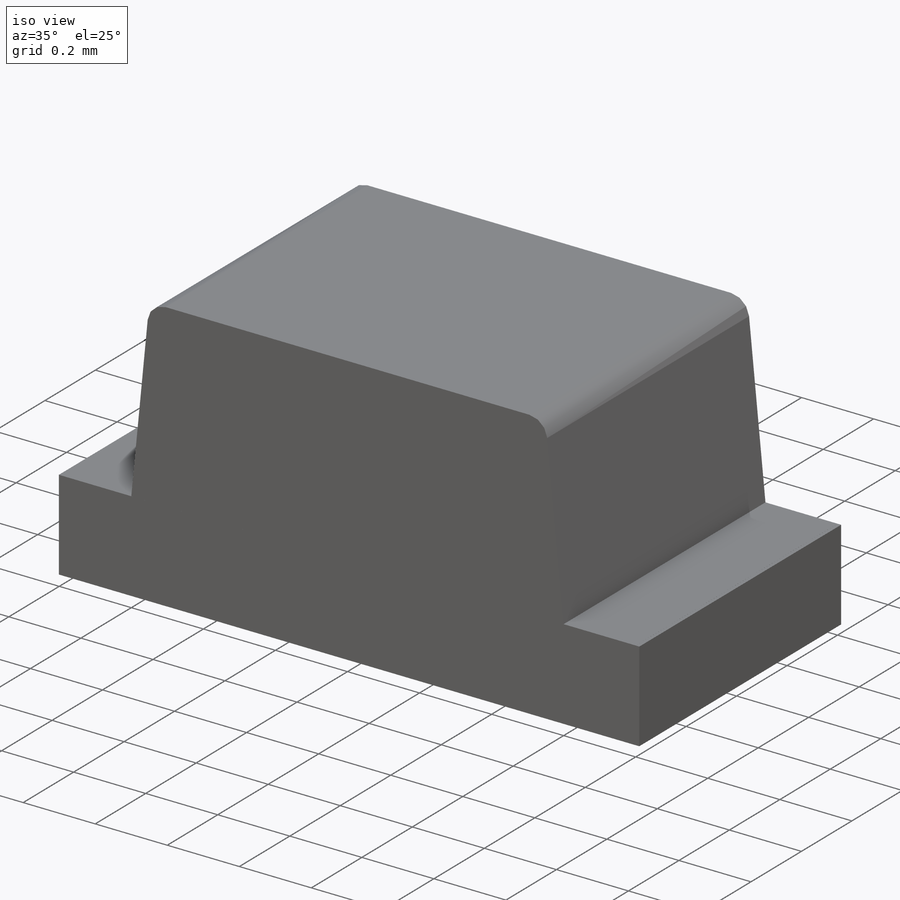
[diagram: iso view]
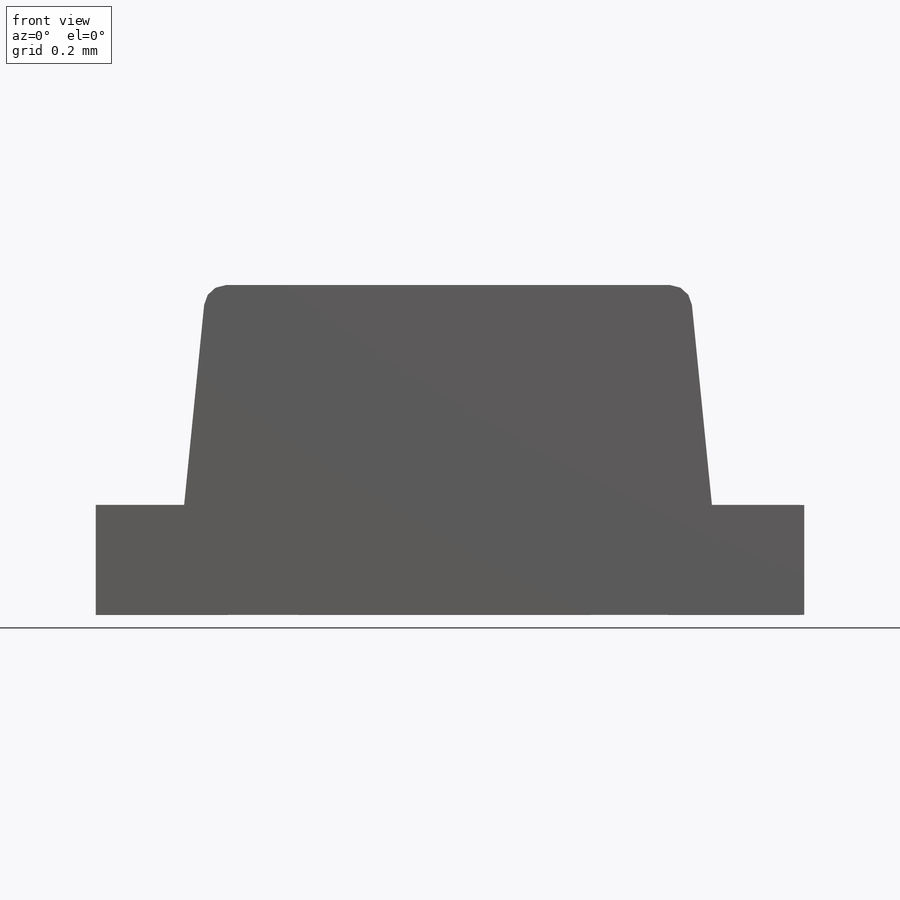
[diagram: front view]
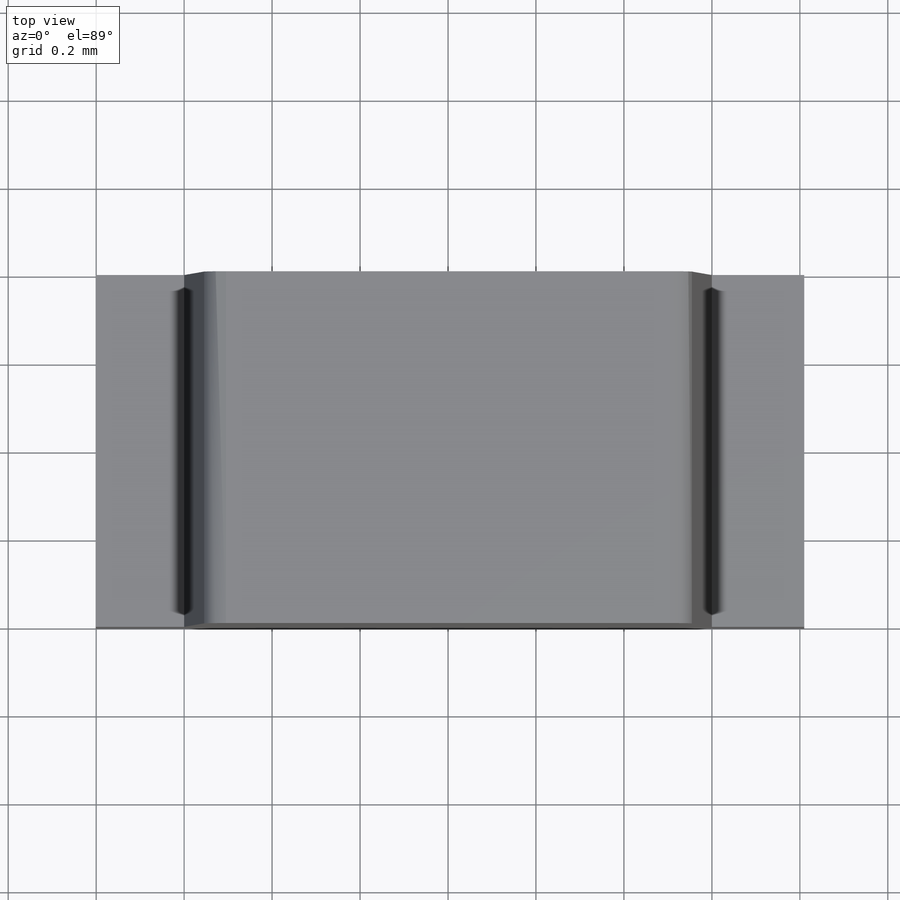
[diagram: top view]
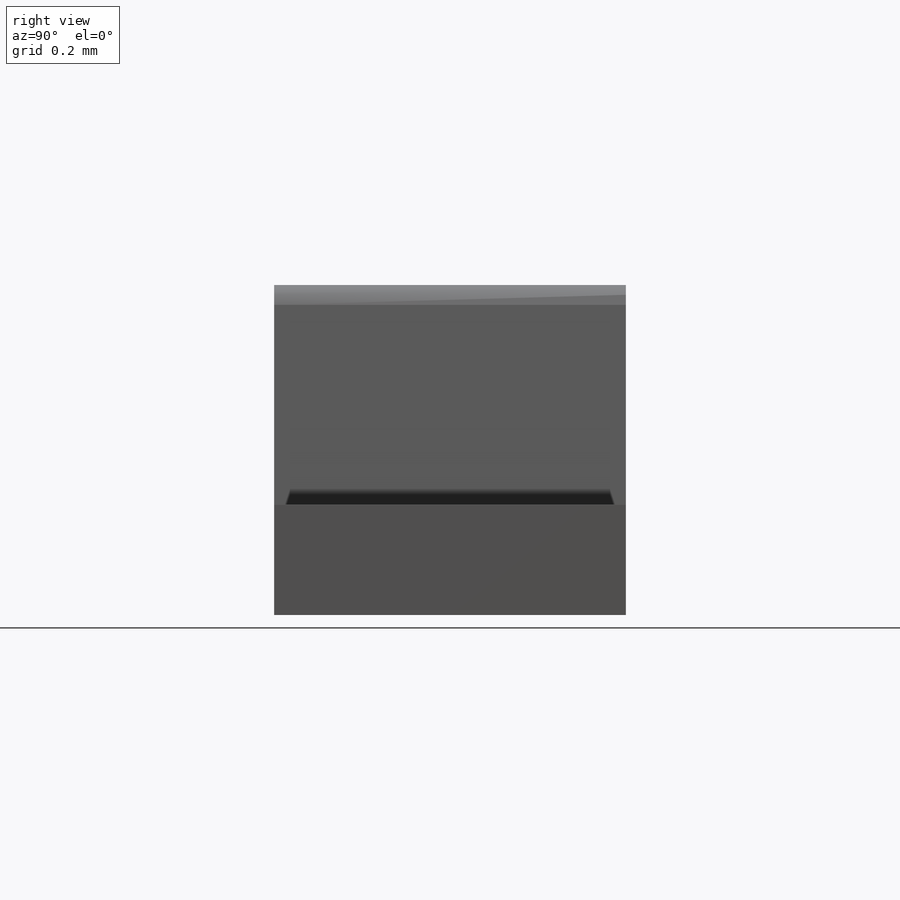
[diagram: right view]
SOLIDWORKS PART (.sldprt)
format: sldprt  version: not decoded by parser v0  size: 772,096 bytes
history: native  units: mm
features: sketch x8, extrude x7, material x1, fillet x1, cut_extrude x1 (+12 scaffold rows collapsed)
feature tree (30):
  scaffold x12  (default folders/planes/origin — collapsed)
  material  "Material <not specified>"
  sketch  "Sketch1"  dims[D1=0.25mm D2=1.6mm D3=1.2mm D4=1.1mm D5=0.75mm]
  extrude  "Extrude1"  Depth=0.8mm
  extrude  "Extrude2"  [1 undecoded]
  sketch  "Sketch1<3>"  dims[D1=0.8mm]
  sketch  "Sketch2"  dims[D1=0.3mm]
  sketch  "Sketch3"
  extrude  "Extrude3"  Depth=0.01mm
  extrude  "Extrude4"  [1 undecoded]
  sketch  "Sketch2<3>"  dims[D1=0.01mm D2=0.0001mm]
  extrude  "Extrude5"  Depth=0.01mm
  fillet  "Fillet1"  Radius=0.05mm
  sketch  "Sketch5"
  extrude  "Extrude6"  Depth=0.01mm
  sketch  "Sketch6"
  extrude  "Extrude7"  Depth=0.01mm
  sketch  "Sketch7"
  cut_extrude  "Cut-Extrude1"  Depth=0.01mm
decode coverage: 11 of 17 modeling features carry decoded parameters
note: 2 parameter values undecoded
note: suppression state not decoded; provenance and decode notes live in map.json
